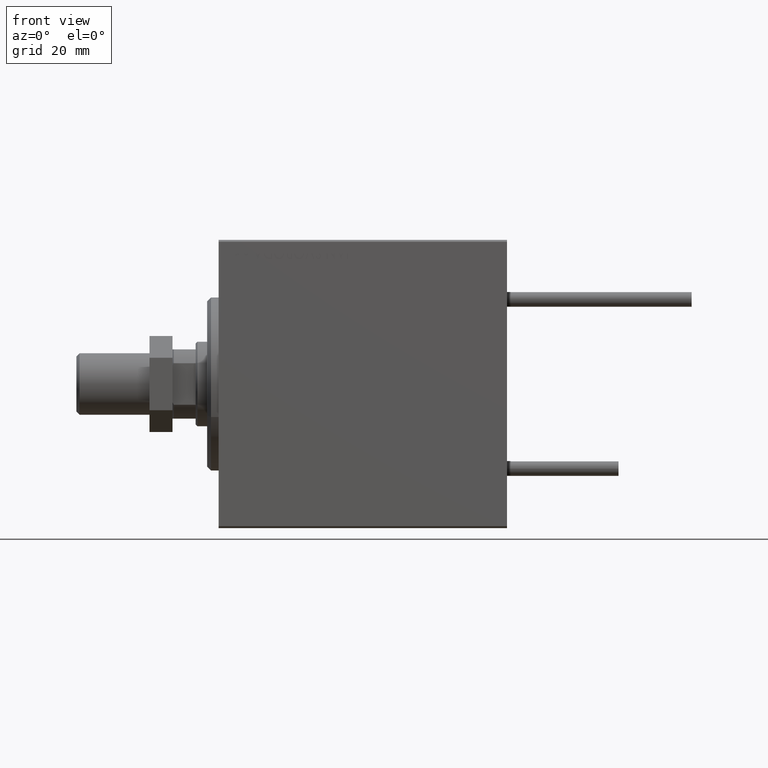
[diagram: clean part render]
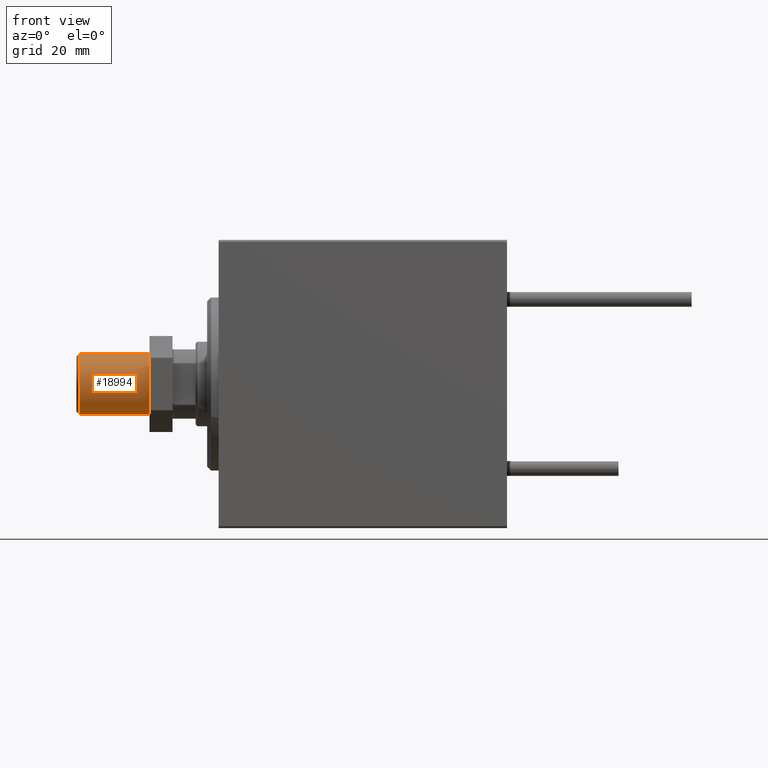
[diagram: same view with one face highlighted and labeled with its STEP entity id]
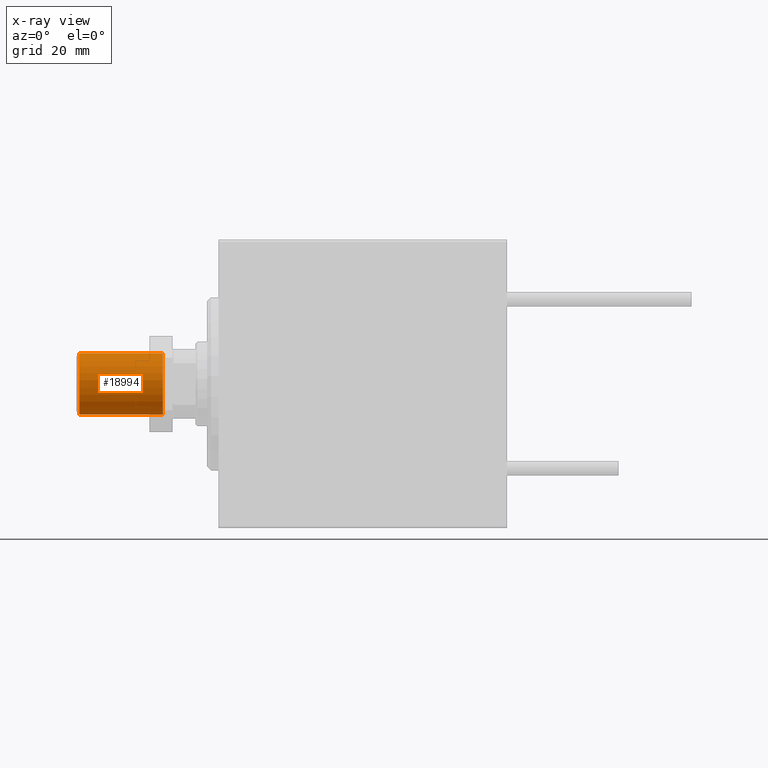
[diagram: x-ray of the same camera — body ghosted, the highlighted face saturated]
A machine part, front view. The second image highlights one B-rep face of the part: STEP entity #18994.
The next image is the same camera in x-ray: the body ghosted, the highlighted face saturated — about 0% of this face is hidden behind the body in this view.
In plain terms, the highlighted cylindrical surface (edge-blend (fillet) strip) has radius 8 mm, axis along (-1, -0, 0).
Its self-contained STEP definition (entity closure, byte-faithful):
#909 = VERTEX_POINT ( 'NONE', #6880 ) ;
#1070 = CARTESIAN_POINT ( 'NONE',  ( -8.000000000000000000, 0.000000000000000000, 22.50000000000000000 ) ) ;
#2042 = AXIS2_PLACEMENT_3D ( 'NONE', #13106, #44177, #35730 ) ;
#2972 = CARTESIAN_POINT ( 'NONE',  ( 8.000000000000000000, 9.797174393178823685E-16, 22.50000000000000000 ) ) ;
#4732 = ORIENTED_EDGE ( 'NONE', *, *, #23630, .F. ) ;
#5385 = CIRCLE ( 'NONE', #16849, 8.000000000000000000 ) ;
#6880 = CARTESIAN_POINT ( 'NONE',  ( 8.000000000000000000, 9.797174393178823685E-16, 0.8000000000000160316 ) ) ;
#7840 = EDGE_LOOP ( 'NONE', ( #4732, #43493, #14953, #20092 ) ) ;
#8413 = DIRECTION ( 'NONE',  ( 0.000000000000000000, 0.000000000000000000, 1.000000000000000000 ) ) ;
#8656 = EDGE_CURVE ( 'NONE', #35417, #909, #12730, .T. ) ;
#10170 = DIRECTION ( 'NONE',  ( -0.000000000000000000, -0.000000000000000000, -1.000000000000000000 ) ) ;
#10275 = VECTOR ( 'NONE', #10170, 1000.000000000000000 ) ;
#11490 = CARTESIAN_POINT ( 'NONE',  ( 0.000000000000000000, 0.000000000000000000, 22.50000000000000000 ) ) ;
#11724 = EDGE_CURVE ( 'NONE', #47073, #35417, #46280, .T. ) ;
#12730 = CIRCLE ( 'NONE', #2042, 8.000000000000000000 ) ;
#12845 = CARTESIAN_POINT ( 'NONE',  ( 0.000000000000000000, 0.000000000000000000, 22.50000000000000000 ) ) ;
#13089 = CYLINDRICAL_SURFACE ( 'NONE', #30729, 8.000000000000000000 ) ;
#13106 = CARTESIAN_POINT ( 'NONE',  ( 0.000000000000000000, 0.000000000000000000, 0.8000000000000160316 ) ) ;
#14953 = ORIENTED_EDGE ( 'NONE', *, *, #11724, .T. ) ;
#16849 = AXIS2_PLACEMENT_3D ( 'NONE', #11490, #8413, #38971 ) ;
#18292 = CARTESIAN_POINT ( 'NONE',  ( -8.000000000000000000, 0.000000000000000000, 22.50000000000000000 ) ) ;
#18994 = ADVANCED_FACE ( 'NONE', ( #29241 ), #13089, .T. ) ;
#20092 = ORIENTED_EDGE ( 'NONE', *, *, #8656, .T. ) ;
#23630 = EDGE_CURVE ( 'NONE', #40173, #909, #38160, .T. ) ;
#29241 = FACE_OUTER_BOUND ( 'NONE', #7840, .T. ) ;
#30729 = AXIS2_PLACEMENT_3D ( 'NONE', #12845, #44400, #36952 ) ;
#35365 = CARTESIAN_POINT ( 'NONE',  ( 8.000000000000000000, 9.797174393178823685E-16, 22.50000000000000000 ) ) ;
#35417 = VERTEX_POINT ( 'NONE', #43232 ) ;
#35730 = DIRECTION ( 'NONE',  ( 1.000000000000000000, 0.000000000000000000, 0.000000000000000000 ) ) ;
#36952 = DIRECTION ( 'NONE',  ( -1.000000000000000000, 0.000000000000000000, 0.000000000000000000 ) ) ;
#38160 = LINE ( 'NONE', #2972, #10275 ) ;
#38971 = DIRECTION ( 'NONE',  ( 1.000000000000000000, 0.000000000000000000, 0.000000000000000000 ) ) ;
#40173 = VERTEX_POINT ( 'NONE', #35365 ) ;
#42681 = DIRECTION ( 'NONE',  ( -0.000000000000000000, -0.000000000000000000, -1.000000000000000000 ) ) ;
#43232 = CARTESIAN_POINT ( 'NONE',  ( -8.000000000000000000, 0.000000000000000000, 0.8000000000000160316 ) ) ;
#43493 = ORIENTED_EDGE ( 'NONE', *, *, #47599, .F. ) ;
#44177 = DIRECTION ( 'NONE',  ( -0.000000000000000000, -0.000000000000000000, 1.000000000000000000 ) ) ;
#44400 = DIRECTION ( 'NONE',  ( -0.000000000000000000, -0.000000000000000000, -1.000000000000000000 ) ) ;
#46280 = LINE ( 'NONE', #18292, #46901 ) ;
#46901 = VECTOR ( 'NONE', #42681, 1000.000000000000000 ) ;
#47073 = VERTEX_POINT ( 'NONE', #1070 ) ;
#47599 = EDGE_CURVE ( 'NONE', #47073, #40173, #5385, .T. ) ;